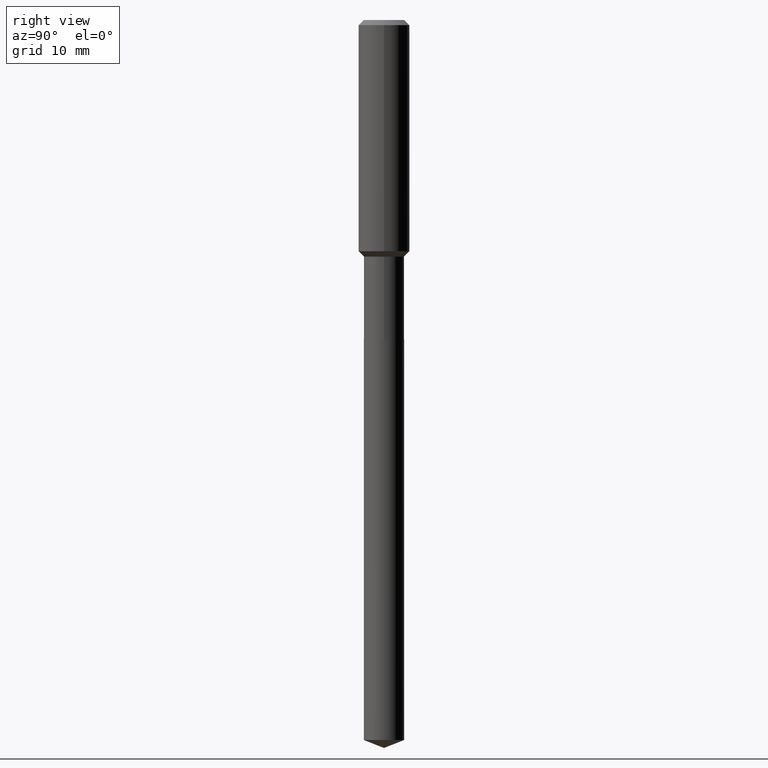
[diagram: clean part render]
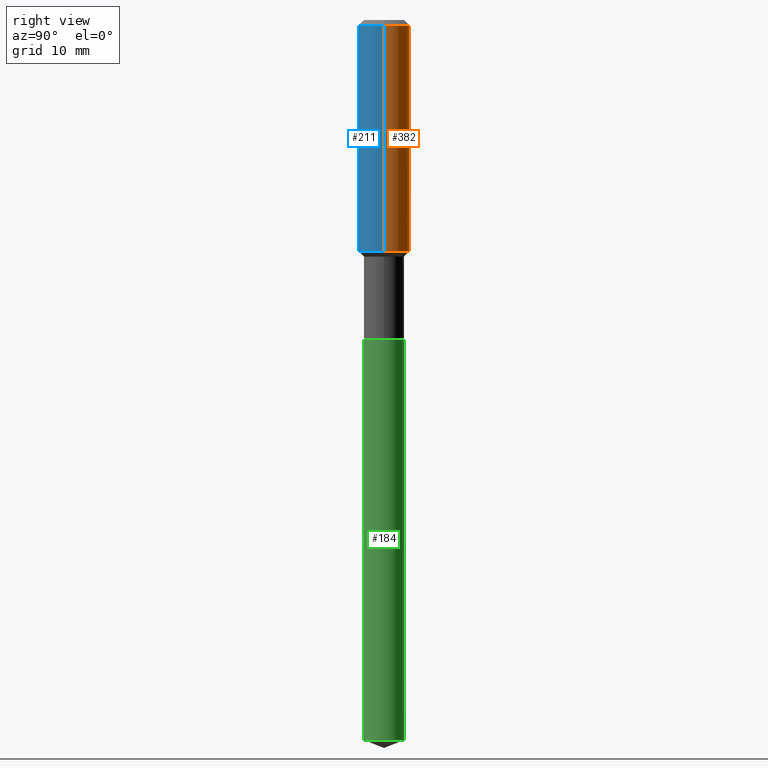
[diagram: same view with three faces highlighted in distinct colors, each labeled with its STEP entity id]
A machine part, right view with three faces highlighted in distinct colors.
Their STEP definitions:

[orange] entity #382 — the highlighted cylindrical surface (edge-blend (fillet) strip) has radius 4.0005 mm, axis along (-0, 0, 1).
#10 = VERTEX_POINT ( 'NONE', #204 ) ;
#11 = DIRECTION ( 'NONE',  ( 1.000000000000000000, -6.982962677686267499E-15, 0.000000000000000000 ) ) ;
#41 = ORIENTED_EDGE ( 'NONE', *, *, #390, .T. ) ;
#76 = CIRCLE ( 'NONE', #448, 0.1575000000000001676 ) ;
#79 = CYLINDRICAL_SURFACE ( 'NONE', #432, 0.1575000000000000844 ) ;
#85 = CARTESIAN_POINT ( 'NONE',  ( 0.000000000000000000, 0.000000000000000000, 0.000000000000000000 ) ) ;
#97 = DIRECTION ( 'NONE',  ( -2.445468806185136877E-29, 3.491481338843145188E-15, 1.000000000000000000 ) ) ;
#105 = DIRECTION ( 'NONE',  ( -2.445468806185136597E-29, 3.491481338843145583E-15, 1.000000000000000000 ) ) ;
#128 = EDGE_CURVE ( 'NONE', #181, #10, #183, .T. ) ;
#154 = VERTEX_POINT ( 'NONE', #260 ) ;
#160 = VECTOR ( 'NONE', #436, 39.37007874015748143 ) ;
#169 = AXIS2_PLACEMENT_3D ( 'NONE', #186, #105, #475 ) ;
#181 = VERTEX_POINT ( 'NONE', #285 ) ;
#183 = LINE ( 'NONE', #286, #160 ) ;
#185 = VERTEX_POINT ( 'NONE', #289 ) ;
#186 = CARTESIAN_POINT ( 'NONE',  ( 7.703226739483228723E-31, -1.099816621735597661E-16, -0.03150000000000019451 ) ) ;
#204 = CARTESIAN_POINT ( 'NONE',  ( 0.1575000000000000011, -1.209798283909146741E-15, -0.03150000000000019451 ) ) ;
#206 = DIRECTION ( 'NONE',  ( -2.445468806185136597E-29, 3.491481338843145583E-15, 1.000000000000000000 ) ) ;
#217 = ORIENTED_EDGE ( 'NONE', *, *, #128, .F. ) ;
#247 = EDGE_CURVE ( 'NONE', #10, #154, #358, .T. ) ;
#260 = CARTESIAN_POINT ( 'NONE',  ( -0.1575000000000000011, -1.424264772458131328E-15, -0.03150000000000019451 ) ) ;
#261 = ORIENTED_EDGE ( 'NONE', *, *, #460, .T. ) ;
#275 = EDGE_LOOP ( 'NONE', ( #41, #261, #410, #217 ) ) ;
#285 = CARTESIAN_POINT ( 'NONE',  ( 0.1575000000000001676, -6.076574122122608647E-15, -1.425400000000000000 ) ) ;
#286 = CARTESIAN_POINT ( 'NONE',  ( 0.1575000000000000844, -1.099816621735587677E-15, 7.679978421878603638E-30 ) ) ;
#289 = CARTESIAN_POINT ( 'NONE',  ( -0.1575000000000001676, -3.857652691564860408E-15, -1.425400000000000000 ) ) ;
#302 = FACE_OUTER_BOUND ( 'NONE', #275, .T. ) ;
#348 = DIRECTION ( 'NONE',  ( 1.000000000000000000, -6.982962677686267499E-15, 4.876176775795936353E-29 ) ) ;
#358 = CIRCLE ( 'NONE', #169, 0.1575000000000000011 ) ;
#382 = ADVANCED_FACE ( 'NONE', ( #302 ), #79, .T. ) ;
#390 = EDGE_CURVE ( 'NONE', #181, #185, #76, .T. ) ;
#410 = ORIENTED_EDGE ( 'NONE', *, *, #247, .F. ) ;
#414 = VECTOR ( 'NONE', #97, 39.37007874015748143 ) ;
#432 = AXIS2_PLACEMENT_3D ( 'NONE', #85, #452, #348 ) ;
#436 = DIRECTION ( 'NONE',  ( -2.445468806185136877E-29, 3.491481338843145188E-15, 1.000000000000000000 ) ) ;
#448 = AXIS2_PLACEMENT_3D ( 'NONE', #469, #206, #11 ) ;
#452 = DIRECTION ( 'NONE',  ( -2.445468806185136597E-29, 3.491481338843145583E-15, 1.000000000000000000 ) ) ;
#460 = EDGE_CURVE ( 'NONE', #185, #154, #476, .T. ) ;
#469 = CARTESIAN_POINT ( 'NONE',  ( 3.485771236336294004E-29, -4.976757500387020378E-15, -1.425400000000000000 ) ) ;
#475 = DIRECTION ( 'NONE',  ( 1.000000000000000000, -6.982962677686265922E-15, 0.000000000000000000 ) ) ;
#476 = LINE ( 'NONE', #479, #414 ) ;
#479 = CARTESIAN_POINT ( 'NONE',  ( -0.1575000000000000844, 1.119104808822158392E-15, -7.747322767151481189E-30 ) ) ;

[blue] entity #211 — the highlighted cylindrical surface (edge-blend (fillet) strip) has radius 4.0005 mm, axis along (-0, 0, 1).
#10 = VERTEX_POINT ( 'NONE', #204 ) ;
#19 = FACE_OUTER_BOUND ( 'NONE', #246, .T. ) ;
#24 = CARTESIAN_POINT ( 'NONE',  ( 3.485771236336294004E-29, -4.976757500387020378E-15, -1.425400000000000000 ) ) ;
#29 = DIRECTION ( 'NONE',  ( 1.000000000000000000, -6.982962677686267499E-15, 0.000000000000000000 ) ) ;
#34 = DIRECTION ( 'NONE',  ( -2.445468806185136597E-29, 3.491481338843145583E-15, 1.000000000000000000 ) ) ;
#35 = ORIENTED_EDGE ( 'NONE', *, *, #460, .F. ) ;
#71 = ORIENTED_EDGE ( 'NONE', *, *, #428, .T. ) ;
#75 = AXIS2_PLACEMENT_3D ( 'NONE', #258, #34, #362 ) ;
#97 = DIRECTION ( 'NONE',  ( -2.445468806185136877E-29, 3.491481338843145188E-15, 1.000000000000000000 ) ) ;
#100 = CIRCLE ( 'NONE', #478, 0.1575000000000000011 ) ;
#128 = EDGE_CURVE ( 'NONE', #181, #10, #183, .T. ) ;
#154 = VERTEX_POINT ( 'NONE', #260 ) ;
#160 = VECTOR ( 'NONE', #436, 39.37007874015748143 ) ;
#181 = VERTEX_POINT ( 'NONE', #285 ) ;
#183 = LINE ( 'NONE', #286, #160 ) ;
#185 = VERTEX_POINT ( 'NONE', #289 ) ;
#204 = CARTESIAN_POINT ( 'NONE',  ( 0.1575000000000000011, -1.209798283909146741E-15, -0.03150000000000019451 ) ) ;
#211 = ADVANCED_FACE ( 'NONE', ( #19 ), #439, .T. ) ;
#212 = CIRCLE ( 'NONE', #252, 0.1575000000000001676 ) ;
#229 = CARTESIAN_POINT ( 'NONE',  ( 7.703226739483228723E-31, -1.099816621735597661E-16, -0.03150000000000019451 ) ) ;
#232 = ORIENTED_EDGE ( 'NONE', *, *, #298, .F. ) ;
#246 = EDGE_LOOP ( 'NONE', ( #35, #71, #295, #232 ) ) ;
#252 = AXIS2_PLACEMENT_3D ( 'NONE', #24, #325, #29 ) ;
#258 = CARTESIAN_POINT ( 'NONE',  ( 0.000000000000000000, 0.000000000000000000, 0.000000000000000000 ) ) ;
#260 = CARTESIAN_POINT ( 'NONE',  ( -0.1575000000000000011, -1.424264772458131328E-15, -0.03150000000000019451 ) ) ;
#285 = CARTESIAN_POINT ( 'NONE',  ( 0.1575000000000001676, -6.076574122122608647E-15, -1.425400000000000000 ) ) ;
#286 = CARTESIAN_POINT ( 'NONE',  ( 0.1575000000000000844, -1.099816621735587677E-15, 7.679978421878603638E-30 ) ) ;
#289 = CARTESIAN_POINT ( 'NONE',  ( -0.1575000000000001676, -3.857652691564860408E-15, -1.425400000000000000 ) ) ;
#295 = ORIENTED_EDGE ( 'NONE', *, *, #128, .T. ) ;
#298 = EDGE_CURVE ( 'NONE', #154, #10, #100, .T. ) ;
#300 = DIRECTION ( 'NONE',  ( 1.000000000000000000, -6.982962677686265922E-15, 0.000000000000000000 ) ) ;
#325 = DIRECTION ( 'NONE',  ( -2.445468806185136597E-29, 3.491481338843145583E-15, 1.000000000000000000 ) ) ;
#362 = DIRECTION ( 'NONE',  ( 1.000000000000000000, -6.982962677686267499E-15, 4.876176775795936353E-29 ) ) ;
#414 = VECTOR ( 'NONE', #97, 39.37007874015748143 ) ;
#418 = DIRECTION ( 'NONE',  ( -2.445468806185136597E-29, 3.491481338843145583E-15, 1.000000000000000000 ) ) ;
#428 = EDGE_CURVE ( 'NONE', #185, #181, #212, .T. ) ;
#436 = DIRECTION ( 'NONE',  ( -2.445468806185136877E-29, 3.491481338843145188E-15, 1.000000000000000000 ) ) ;
#439 = CYLINDRICAL_SURFACE ( 'NONE', #75, 0.1575000000000000844 ) ;
#460 = EDGE_CURVE ( 'NONE', #185, #154, #476, .T. ) ;
#476 = LINE ( 'NONE', #479, #414 ) ;
#478 = AXIS2_PLACEMENT_3D ( 'NONE', #229, #418, #300 ) ;
#479 = CARTESIAN_POINT ( 'NONE',  ( -0.1575000000000000844, 1.119104808822158392E-15, -7.747322767151481189E-30 ) ) ;

[green] entity #184 — the highlighted cylindrical surface (edge-blend (fillet) strip) has radius 3.1496 mm, axis along (-0, 0, 1).
#2 = ORIENTED_EDGE ( 'NONE', *, *, #482, .T. ) ;
#38 = VERTEX_POINT ( 'NONE', #380 ) ;
#52 = CIRCLE ( 'NONE', #282, 0.1239999999999999991 ) ;
#58 = DIRECTION ( 'NONE',  ( -6.982962677686265922E-15, -1.000000000000000000, 4.406206441393973340E-15 ) ) ;
#64 = CARTESIAN_POINT ( 'NONE',  ( 4.813905344975441835E-29, -6.872981015512731707E-15, -1.968500000000000139 ) ) ;
#81 = VERTEX_POINT ( 'NONE', #163 ) ;
#101 = DIRECTION ( 'NONE',  ( -2.445397477310179660E-29, 3.491583485851871163E-15, 1.000000000000000000 ) ) ;
#145 = DIRECTION ( 'NONE',  ( -2.445397477310179660E-29, 3.491583485851871163E-15, 1.000000000000000000 ) ) ;
#149 = CIRCLE ( 'NONE', #228, 0.1239999999999999991 ) ;
#162 = EDGE_CURVE ( 'NONE', #81, #38, #149, .T. ) ;
#163 = CARTESIAN_POINT ( 'NONE',  ( -8.658873720330487110E-16, -0.1240000000000068825, -1.968499999999999472 ) ) ;
#184 = ADVANCED_FACE ( 'NONE', ( #360 ), #216, .T. ) ;
#191 = VECTOR ( 'NONE', #310, 39.37007874015748143 ) ;
#216 = CYLINDRICAL_SURFACE ( 'NONE', #296, 0.1239999999999999991 ) ;
#221 = VERTEX_POINT ( 'NONE', #291 ) ;
#228 = AXIS2_PLACEMENT_3D ( 'NONE', #64, #101, #58 ) ;
#267 = LINE ( 'NONE', #305, #191 ) ;
#282 = AXIS2_PLACEMENT_3D ( 'NONE', #330, #145, #333 ) ;
#291 = CARTESIAN_POINT ( 'NONE',  ( 8.810729923426329884E-16, 0.1239999999999845254, -4.439355101023748418 ) ) ;
#296 = AXIS2_PLACEMENT_3D ( 'NONE', #441, #401, #370 ) ;
#297 = ORIENTED_EDGE ( 'NONE', *, *, #162, .F. ) ;
#299 = VECTOR ( 'NONE', #355, 39.37007874015748143 ) ;
#301 = EDGE_LOOP ( 'NONE', ( #2, #406, #297, #451 ) ) ;
#305 = CARTESIAN_POINT ( 'NONE',  ( 8.810729923425722461E-16, 0.1239999999999931157, -1.968500000000000361 ) ) ;
#310 = DIRECTION ( 'NONE',  ( -2.445397477310179380E-29, 3.491583485851871163E-15, 1.000000000000000000 ) ) ;
#320 = EDGE_CURVE ( 'NONE', #221, #38, #267, .T. ) ;
#330 = CARTESIAN_POINT ( 'NONE',  ( 1.085612817581790466E-28, -1.550017788218010837E-14, -4.439355101023747530 ) ) ;
#333 = DIRECTION ( 'NONE',  ( -6.982962677686265922E-15, -1.000000000000000000, 4.406206441393973340E-15 ) ) ;
#355 = DIRECTION ( 'NONE',  ( -2.445397477310179380E-29, 3.491583485851871163E-15, 1.000000000000000000 ) ) ;
#360 = FACE_OUTER_BOUND ( 'NONE', #301, .T. ) ;
#363 = VERTEX_POINT ( 'NONE', #374 ) ;
#365 = LINE ( 'NONE', #444, #299 ) ;
#370 = DIRECTION ( 'NONE',  ( -6.982962677686265922E-15, -1.000000000000000000, 4.406206441393973340E-15 ) ) ;
#374 = CARTESIAN_POINT ( 'NONE',  ( -8.658873720329886590E-16, -0.1240000000000155284, -4.439355101023747530 ) ) ;
#380 = CARTESIAN_POINT ( 'NONE',  ( 8.810729923426331856E-16, 0.1239999999999931157, -1.968500000000000583 ) ) ;
#401 = DIRECTION ( 'NONE',  ( -2.445397477310179660E-29, 3.491583485851871163E-15, 1.000000000000000000 ) ) ;
#406 = ORIENTED_EDGE ( 'NONE', *, *, #320, .T. ) ;
#427 = EDGE_CURVE ( 'NONE', #363, #81, #365, .T. ) ;
#441 = CARTESIAN_POINT ( 'NONE',  ( 4.813905344975440714E-29, -6.872981015512730918E-15, -1.968499999999999694 ) ) ;
#444 = CARTESIAN_POINT ( 'NONE',  ( -8.658873720330487110E-16, -0.1240000000000068825, -1.968499999999999250 ) ) ;
#451 = ORIENTED_EDGE ( 'NONE', *, *, #427, .F. ) ;
#482 = EDGE_CURVE ( 'NONE', #363, #221, #52, .T. ) ;